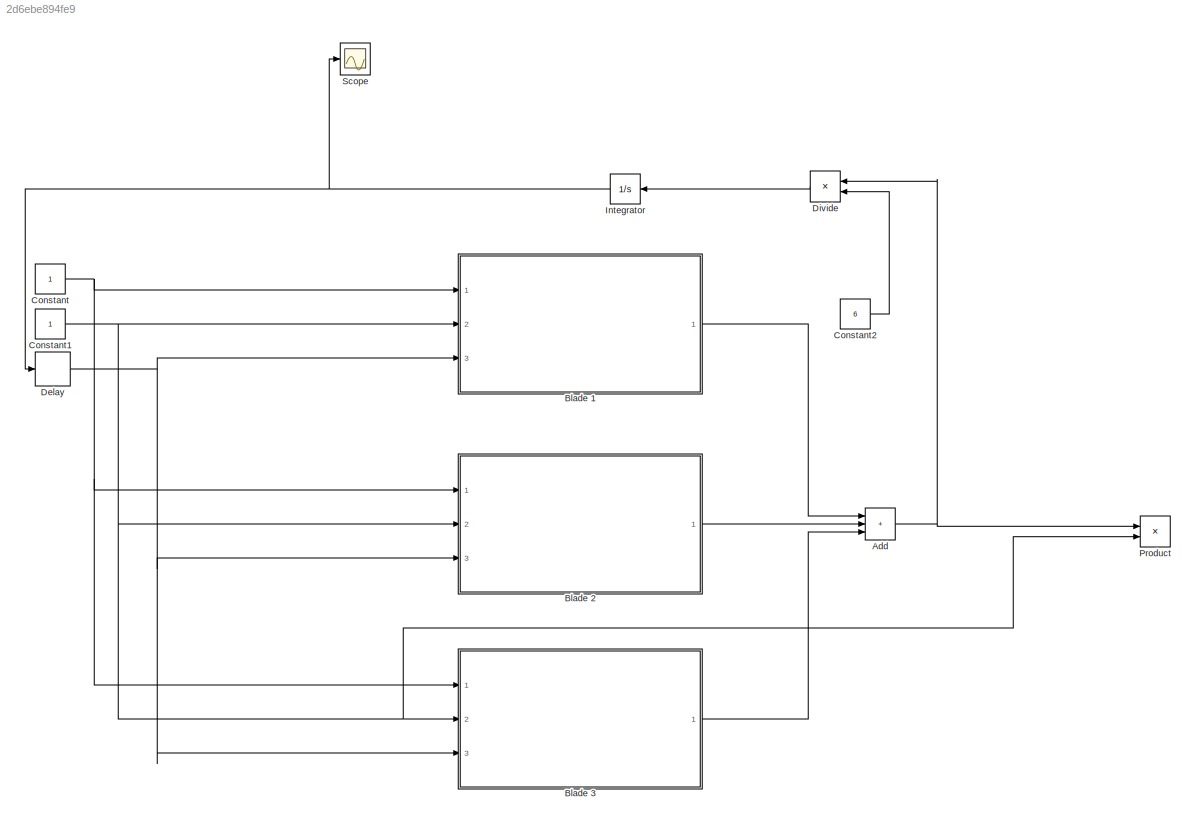
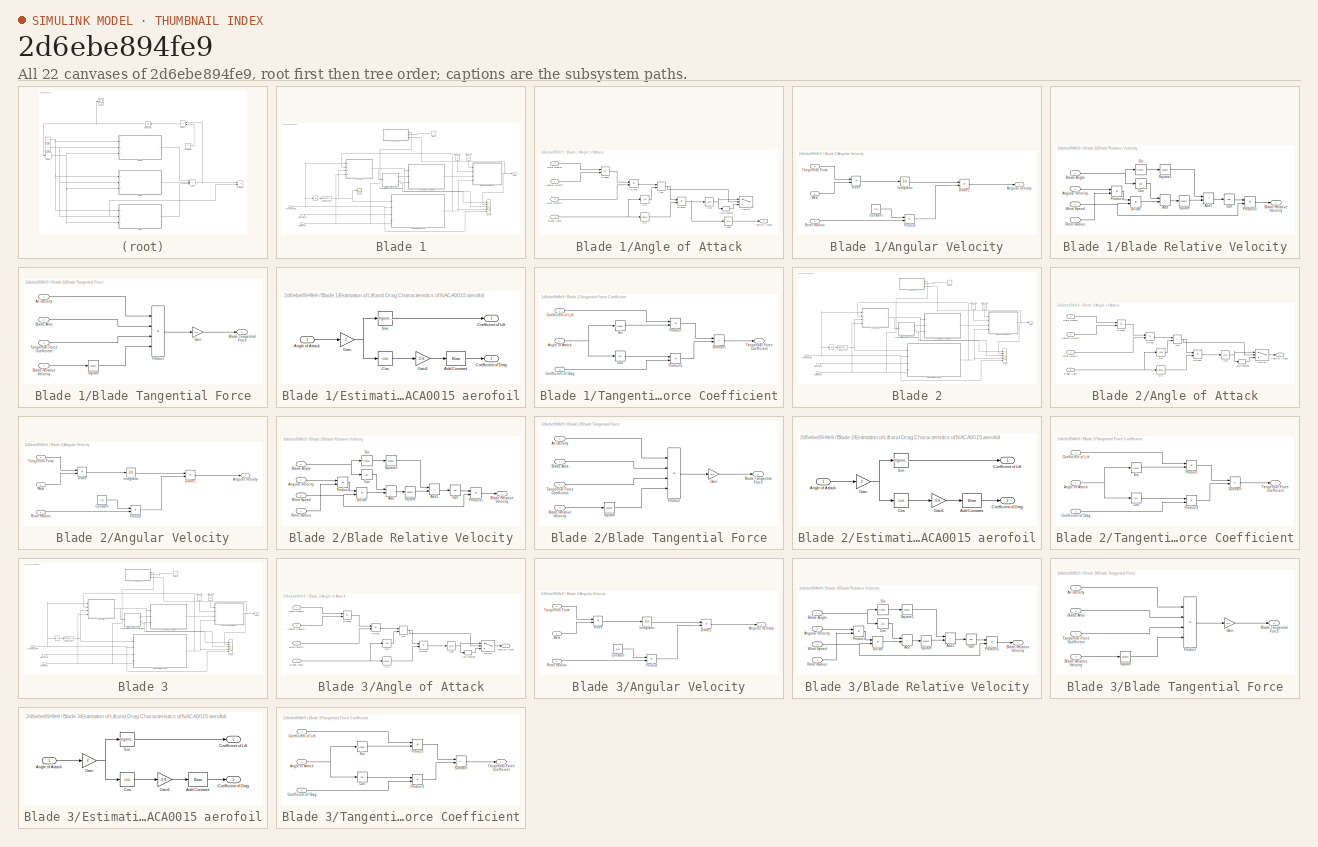
[diagram: thumbnail index - all 22 canvases of the model, root first then tree order]
MODEL slx_2d6ebe894fe9
KIND model
CONFIG AbsTol = auto
CONFIG EnableMultiTasking = off
CONFIG FixedStep = 0.001
CONFIG MaxStep = auto
CONFIG MinStep = auto
CONFIG RelTol = 1e-3
CONFIG SampleTimeConstraint = Unconstrained
CONFIG SolverName = FixedStepAuto
CONFIG StartTime = 0.0
CONFIG StopTime = 1000
BLOCK [Sum] Add
  IconShape = rectangular
  Inputs = +++
  Ports = [3, 1]
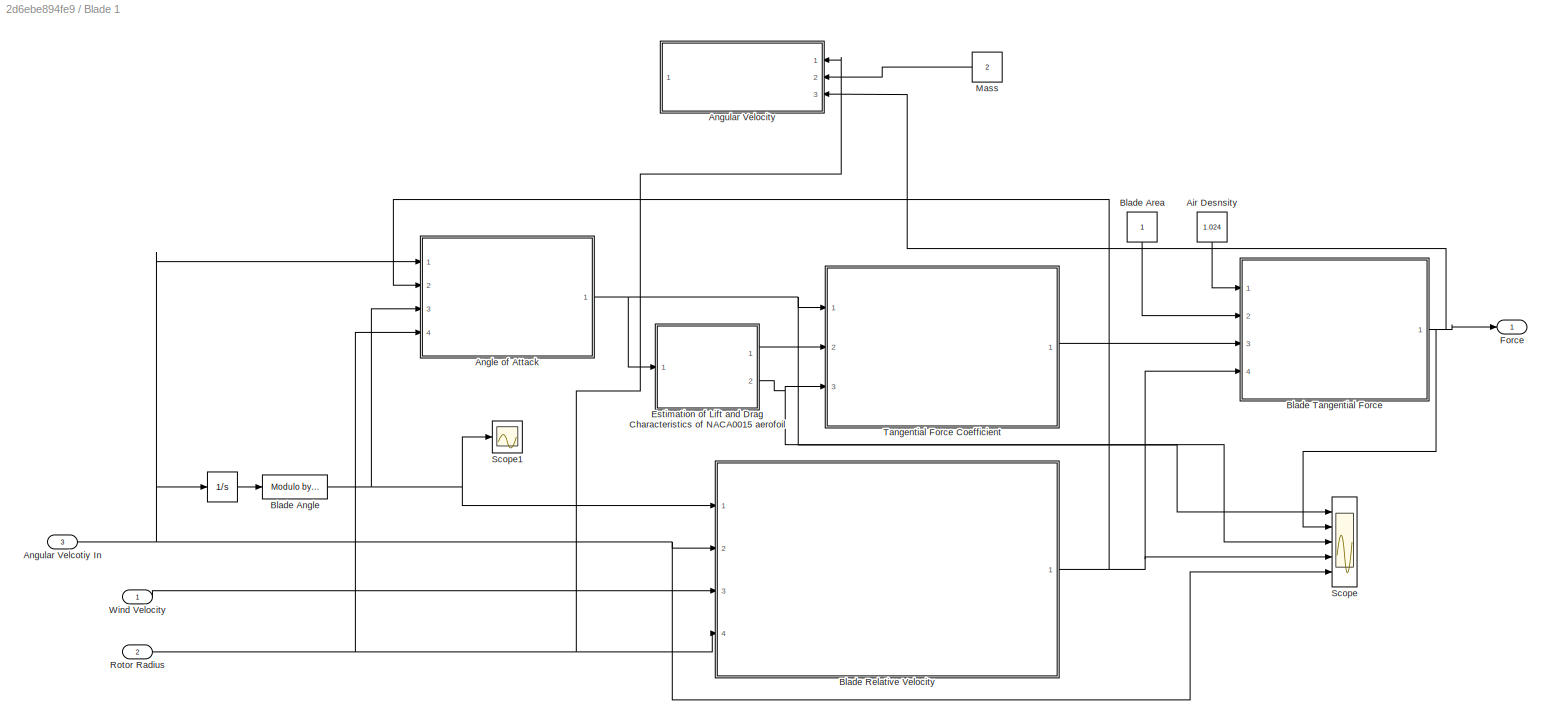
BLOCK [SubSystem] Blade 1
  Ports = [3, 1]
  RequestExecContextInheritance = off
BLOCK [Integrator] Blade 1/ 
  Ports = [1, 1]
BLOCK [Constant] Blade 1/Air Desnsity
  NameLocation = top
  Value = 1.024
BLOCK [SubSystem] Blade 1/Angle of Attack
  NameLocation = top
  Ports = [4, 1]
  RequestExecContextInheritance = off
BLOCK [Sum] Blade 1/Angle of Attack/Add
  IconShape = rectangular
  Ports = [2, 1]
BLOCK [Bias] Blade 1/Angle of Attack/Add Constant
  Bias = pi
  Commented = on
  SaturateOnIntegerOverflow = off
BLOCK [Outport] Blade 1/Angle of Attack/Angle of Attack
BLOCK [Inport] Blade 1/Angle of Attack/Angular Velocity
BLOCK [Trigonometry] Blade 1/Angle of Attack/Atan
  Commented = on
  Operator = atan
  Ports = [1, 1]
BLOCK [Trigonometry] Blade 1/Angle of Attack/Atan1
  Operator = atan
  Ports = [1, 1]
BLOCK [Inport] Blade 1/Angle of Attack/Blade Angle
  Port = 3
BLOCK [Trigonometry] Blade 1/Angle of Attack/Cos
  Operator = cos
  Ports = [1, 1]
BLOCK [Product] Blade 1/Angle of Attack/Divide
  Inputs = */
  Ports = [2, 1]
BLOCK [Product] Blade 1/Angle of Attack/Divide1
  Inputs = /*
  Ports = [2, 1]
BLOCK [Product] Blade 1/Angle of Attack/Product
  Ports = [2, 1]
BLOCK [Inport] Blade 1/Angle of Attack/Rotor Radius
  Port = 4
BLOCK [Trigonometry] Blade 1/Angle of Attack/Sin
  Ports = [1, 1]
BLOCK [Switch] Blade 1/Angle of Attack/Switch
  Commented = on
  Criteria = u2 > Threshold
  InputSameDT = off
  SaturateOnIntegerOverflow = off
BLOCK [Inport] Blade 1/Angle of Attack/Wind Velocity
  Port = 2
BLOCK [Inport] Blade 1/Angular Velcotiy In
  Port = 3
BLOCK [SubSystem] Blade 1/Angular Velocity
  Ports = [3, 1]
  RequestExecContextInheritance = off
BLOCK [Outport] Blade 1/Angular Velocity/Angular Velocity
BLOCK [Constant] Blade 1/Angular Velocity/Constant
  Value = 2*pi
BLOCK [Product] Blade 1/Angular Velocity/Divide
  Inputs = */
  Ports = [2, 1]
BLOCK [Product] Blade 1/Angular Velocity/Divide1
  Inputs = */
  Ports = [2, 1]
BLOCK [Integrator] Blade 1/Angular Velocity/Integrator
  Ports = [1, 1]
BLOCK [Inport] Blade 1/Angular Velocity/Mass
  Port = 2
BLOCK [Product] Blade 1/Angular Velocity/Product
  Ports = [2, 1]
BLOCK [Inport] Blade 1/Angular Velocity/Rotor Radius
BLOCK [Inport] Blade 1/Angular Velocity/Tangential Force
  Port = 3
BLOCK [Reference] Blade 1/Blade Angle  REF=embmathops/Modulo by Constant
  Ports = [1, 1]
  SourceBlock = embmathops/Modulo by Constant
  SourceProductBaseCode = SL
  SourceType = fixed.system.ModByConstant
BLOCK [Constant] Blade 1/Blade Area
  NameLocation = top
BLOCK [SubSystem] Blade 1/Blade Relative Velocity
  Ports = [4, 1]
  RequestExecContextInheritance = off
BLOCK [Sum] Blade 1/Blade Relative Velocity/Add
  IconShape = rectangular
  Ports = [2, 1]
BLOCK [Sum] Blade 1/Blade Relative Velocity/Add1
  IconShape = rectangular
  Ports = [2, 1]
BLOCK [Inport] Blade 1/Blade Relative Velocity/Angular Velocity
  Port = 2
BLOCK [Inport] Blade 1/Blade Relative Velocity/Blade Angle
BLOCK [Outport] Blade 1/Blade Relative Velocity/Blade Relative Velocity
BLOCK [Trigonometry] Blade 1/Blade Relative Velocity/Cos
  Operator = cos
  Ports = [1, 1]
BLOCK [Product] Blade 1/Blade Relative Velocity/Divide
  Inputs = */
  Ports = [2, 1]
BLOCK [Product] Blade 1/Blade Relative Velocity/Product
  Ports = [2, 1]
BLOCK [Product] Blade 1/Blade Relative Velocity/Product1
  Ports = [2, 1]
BLOCK [Inport] Blade 1/Blade Relative Velocity/Rotor Radius
  Port = 4
BLOCK [Trigonometry] Blade 1/Blade Relative Velocity/Sin
  Ports = [1, 1]
BLOCK [Sqrt] Blade 1/Blade Relative Velocity/Sqrt
BLOCK [Math] Blade 1/Blade Relative Velocity/Square
  Operator = square
  Ports = [1, 1]
BLOCK [Math] Blade 1/Blade Relative Velocity/Square1
  Operator = square
  Ports = [1, 1]
BLOCK [Inport] Blade 1/Blade Relative Velocity/Wind Speed
  Port = 3
BLOCK [SubSystem] Blade 1/Blade Tangential Force
  Ports = [4, 1]
  RequestExecContextInheritance = off
BLOCK [Inport] Blade 1/Blade Tangential Force/Air Density
BLOCK [Inport] Blade 1/Blade Tangential Force/Blade Area 
  Port = 2
BLOCK [Inport] Blade 1/Blade Tangential Force/Blade Relative Velocity
  Port = 4
BLOCK [Outport] Blade 1/Blade Tangential Force/Blade Tangential Force
BLOCK [Gain] Blade 1/Blade Tangential Force/Gain
  Gain = 0.5
BLOCK [Product] Blade 1/Blade Tangential Force/Product
  Inputs = 4
  Ports = [4, 1]
BLOCK [Math] Blade 1/Blade Tangential Force/Square
  Operator = square
  Ports = [1, 1]
BLOCK [Inport] Blade 1/Blade Tangential Force/Tangential Force Coefficient
  Port = 3
BLOCK [SubSystem] Blade 1/Estimation of Lift and Drag Characteristics of NACA0015 aerofoil
  Ports = [1, 2]
  RequestExecContextInheritance = off
BLOCK [Bias] Blade 1/Estimation of Lift and Drag Characteristics of NACA0015 aerofoil/Add Constant
  Bias = 1
  SaturateOnIntegerOverflow = off
BLOCK [Inport] Blade 1/Estimation of Lift and Drag Characteristics of NACA0015 aerofoil/Angle of Attack
BLOCK [Outport] Blade 1/Estimation of Lift and Drag Characteristics of NACA0015 aerofoil/Coefficient of Drag
  Port = 2
BLOCK [Outport] Blade 1/Estimation of Lift and Drag Characteristics of NACA0015 aerofoil/Coefficient of Lift
BLOCK [Trigonometry] Blade 1/Estimation of Lift and Drag Characteristics of NACA0015 aerofoil/Cos
  Operator = cos
  Ports = [1, 1]
BLOCK [Gain] Blade 1/Estimation of Lift and Drag Characteristics of NACA0015 aerofoil/Gain
  Gain = 2
BLOCK [Gain] Blade 1/Estimation of Lift and Drag Characteristics of NACA0015 aerofoil/Gain1
  Gain = -0.8
BLOCK [Trigonometry] Blade 1/Estimation of Lift and Drag Characteristics of NACA0015 aerofoil/Sin
  Ports = [1, 1]
BLOCK [Outport] Blade 1/Force
BLOCK [Constant] Blade 1/Mass
  Value = 2
BLOCK [Inport] Blade 1/Rotor Radius
  Port = 2
BLOCK [Scope] Blade 1/Scope
  Floating = off
  NumInputPorts = 5
  Ports = [5]
  ScopeSpecificationString = Simulink.scopes.TimeScopeBlockCfg('CurrentConfiguration', extmgr.ConfigurationSet(extmgr.Configuration('Core','General UI',true),extmgr.Configuration('Core','Source UI',true),extmgr.Configuration('Sources','WiredSimulink',true),extmgr.Configuration('Visuals','Time Domain',true,'SerializedDisplays',{struct('MinYLimReal','-2','MaxYLimReal','2','YLabelReal','','MinYLimMag','0.00000','MaxYLimMag','23....<+1622ch>
BLOCK [Scope] Blade 1/Scope1
  Floating = off
  NumInputPorts = 1
  Ports = [1]
  ScopeSpecificationString = Simulink.scopes.TimeScopeBlockCfg('CurrentConfiguration', extmgr.ConfigurationSet(extmgr.Configuration('Core','General UI',true),extmgr.Configuration('Core','Source UI',true),extmgr.Configuration('Sources','WiredSimulink',true,'DataLoggingVariableName','ScopeData2'),extmgr.Configuration('Visuals','Time Domain',true),extmgr.Configuration('Tools','Plot Navigation',true),extmgr.Configuration('Tools',...<+40ch>
BLOCK [SubSystem] Blade 1/Tangential Force Coefficient
  Ports = [3, 1]
  RequestExecContextInheritance = off
BLOCK [Inport] Blade 1/Tangential Force Coefficient/Angle of Attack
BLOCK [Inport] Blade 1/Tangential Force Coefficient/Coefficient of Drag
  Port = 3
BLOCK [Inport] Blade 1/Tangential Force Coefficient/Coefficient of Lift
  Port = 2
BLOCK [Trigonometry] Blade 1/Tangential Force Coefficient/Cos
  Operator = cos
  Ports = [1, 1]
BLOCK [Product] Blade 1/Tangential Force Coefficient/Product
  Ports = [2, 1]
BLOCK [Product] Blade 1/Tangential Force Coefficient/Product1
  Ports = [2, 1]
BLOCK [Trigonometry] Blade 1/Tangential Force Coefficient/Sin
  Ports = [1, 1]
BLOCK [Sum] Blade 1/Tangential Force Coefficient/Subtract
  IconShape = rectangular
  Inputs = +-
  Ports = [2, 1]
BLOCK [Outport] Blade 1/Tangential Force Coefficient/Tangential Force Coefficient
BLOCK [Inport] Blade 1/Wind Velocity
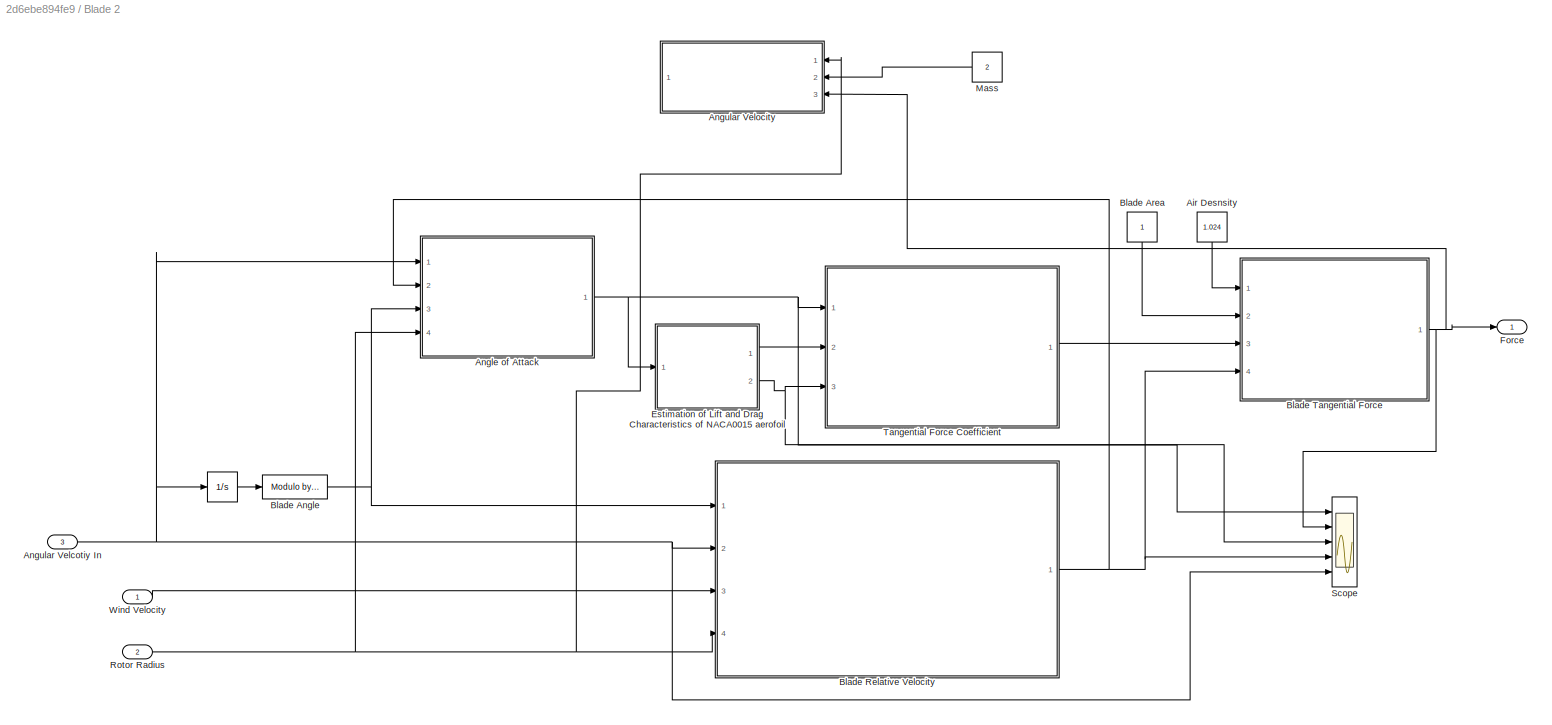
BLOCK [SubSystem] Blade 2
  Ports = [3, 1]
  RequestExecContextInheritance = off
BLOCK [Integrator] Blade 2/ 
  Ports = [1, 1]
BLOCK [Constant] Blade 2/Air Desnsity
  NameLocation = top
  Value = 1.024
BLOCK [SubSystem] Blade 2/Angle of Attack
  NameLocation = top
  Ports = [4, 1]
  RequestExecContextInheritance = off
BLOCK [Sum] Blade 2/Angle of Attack/Add
  IconShape = rectangular
  Ports = [2, 1]
BLOCK [Bias] Blade 2/Angle of Attack/Add Constant
  Bias = pi
  SaturateOnIntegerOverflow = off
BLOCK [Outport] Blade 2/Angle of Attack/Angle of Attack
BLOCK [Inport] Blade 2/Angle of Attack/Angular Velocity
BLOCK [Trigonometry] Blade 2/Angle of Attack/Atan
  Operator = atan
  Ports = [1, 1]
BLOCK [Inport] Blade 2/Angle of Attack/Blade Angle
  Port = 3
BLOCK [Trigonometry] Blade 2/Angle of Attack/Cos
  Operator = cos
  Ports = [1, 1]
BLOCK [Product] Blade 2/Angle of Attack/Divide
  Inputs = */
  Ports = [2, 1]
BLOCK [Product] Blade 2/Angle of Attack/Divide1
  Inputs = /*
  Ports = [2, 1]
BLOCK [Product] Blade 2/Angle of Attack/Product
  Ports = [2, 1]
BLOCK [Inport] Blade 2/Angle of Attack/Rotor Radius
  Port = 4
BLOCK [Trigonometry] Blade 2/Angle of Attack/Sin
  Ports = [1, 1]
BLOCK [Switch] Blade 2/Angle of Attack/Switch
  Criteria = u2 > Threshold
  InputSameDT = off
  SaturateOnIntegerOverflow = off
BLOCK [Inport] Blade 2/Angle of Attack/Wind Velocity
  Port = 2
BLOCK [Inport] Blade 2/Angular Velcotiy In
  Port = 3
BLOCK [SubSystem] Blade 2/Angular Velocity
  Ports = [3, 1]
  RequestExecContextInheritance = off
BLOCK [Outport] Blade 2/Angular Velocity/Angular Velocity
BLOCK [Constant] Blade 2/Angular Velocity/Constant
  Value = 2*pi
BLOCK [Product] Blade 2/Angular Velocity/Divide
  Inputs = */
  Ports = [2, 1]
BLOCK [Product] Blade 2/Angular Velocity/Divide1
  Inputs = */
  Ports = [2, 1]
BLOCK [Integrator] Blade 2/Angular Velocity/Integrator
  Ports = [1, 1]
BLOCK [Inport] Blade 2/Angular Velocity/Mass
  Port = 2
BLOCK [Product] Blade 2/Angular Velocity/Product
  Ports = [2, 1]
BLOCK [Inport] Blade 2/Angular Velocity/Rotor Radius
BLOCK [Inport] Blade 2/Angular Velocity/Tangential Force
  Port = 3
BLOCK [Reference] Blade 2/Blade Angle  REF=embmathops/Modulo by Constant
  Ports = [1, 1]
  SourceBlock = embmathops/Modulo by Constant
  SourceProductBaseCode = SL
  SourceType = fixed.system.ModByConstant
BLOCK [Constant] Blade 2/Blade Area
  NameLocation = top
BLOCK [SubSystem] Blade 2/Blade Relative Velocity
  Ports = [4, 1]
  RequestExecContextInheritance = off
BLOCK [Sum] Blade 2/Blade Relative Velocity/Add
  IconShape = rectangular
  Ports = [2, 1]
BLOCK [Sum] Blade 2/Blade Relative Velocity/Add1
  IconShape = rectangular
  Ports = [2, 1]
BLOCK [Inport] Blade 2/Blade Relative Velocity/Angular Velocity
  Port = 2
BLOCK [Inport] Blade 2/Blade Relative Velocity/Blade Angle
BLOCK [Outport] Blade 2/Blade Relative Velocity/Blade Relative Velocity
BLOCK [Trigonometry] Blade 2/Blade Relative Velocity/Cos
  Operator = cos
  Ports = [1, 1]
BLOCK [Product] Blade 2/Blade Relative Velocity/Divide
  Inputs = */
  Ports = [2, 1]
BLOCK [Product] Blade 2/Blade Relative Velocity/Product
  Ports = [2, 1]
BLOCK [Product] Blade 2/Blade Relative Velocity/Product1
  Ports = [2, 1]
BLOCK [Inport] Blade 2/Blade Relative Velocity/Rotor Radius
  Port = 4
BLOCK [Trigonometry] Blade 2/Blade Relative Velocity/Sin
  Ports = [1, 1]
BLOCK [Sqrt] Blade 2/Blade Relative Velocity/Sqrt
BLOCK [Math] Blade 2/Blade Relative Velocity/Square
  Operator = square
  Ports = [1, 1]
BLOCK [Math] Blade 2/Blade Relative Velocity/Square1
  Operator = square
  Ports = [1, 1]
BLOCK [Inport] Blade 2/Blade Relative Velocity/Wind Speed
  Port = 3
BLOCK [SubSystem] Blade 2/Blade Tangential Force
  Ports = [4, 1]
  RequestExecContextInheritance = off
BLOCK [Inport] Blade 2/Blade Tangential Force/Air Density
BLOCK [Inport] Blade 2/Blade Tangential Force/Blade Area 
  Port = 2
BLOCK [Inport] Blade 2/Blade Tangential Force/Blade Relative Velocity
  Port = 4
BLOCK [Outport] Blade 2/Blade Tangential Force/Blade Tangential Force
BLOCK [Gain] Blade 2/Blade Tangential Force/Gain
  Gain = 0.5
BLOCK [Product] Blade 2/Blade Tangential Force/Product
  Inputs = 4
  Ports = [4, 1]
BLOCK [Math] Blade 2/Blade Tangential Force/Square
  Operator = square
  Ports = [1, 1]
BLOCK [Inport] Blade 2/Blade Tangential Force/Tangential Force Coefficient
  Port = 3
BLOCK [SubSystem] Blade 2/Estimation of Lift and Drag Characteristics of NACA0015 aerofoil
  Ports = [1, 2]
  RequestExecContextInheritance = off
BLOCK [Bias] Blade 2/Estimation of Lift and Drag Characteristics of NACA0015 aerofoil/Add Constant
  Bias = 1
  SaturateOnIntegerOverflow = off
BLOCK [Inport] Blade 2/Estimation of Lift and Drag Characteristics of NACA0015 aerofoil/Angle of Attack
BLOCK [Outport] Blade 2/Estimation of Lift and Drag Characteristics of NACA0015 aerofoil/Coefficient of Drag
  Port = 2
BLOCK [Outport] Blade 2/Estimation of Lift and Drag Characteristics of NACA0015 aerofoil/Coefficient of Lift
BLOCK [Trigonometry] Blade 2/Estimation of Lift and Drag Characteristics of NACA0015 aerofoil/Cos
  Operator = cos
  Ports = [1, 1]
BLOCK [Gain] Blade 2/Estimation of Lift and Drag Characteristics of NACA0015 aerofoil/Gain
  Gain = 2
BLOCK [Gain] Blade 2/Estimation of Lift and Drag Characteristics of NACA0015 aerofoil/Gain1
  Gain = -0.8
BLOCK [Trigonometry] Blade 2/Estimation of Lift and Drag Characteristics of NACA0015 aerofoil/Sin
  Ports = [1, 1]
BLOCK [Outport] Blade 2/Force
BLOCK [Constant] Blade 2/Mass
  Value = 2
BLOCK [Inport] Blade 2/Rotor Radius
  Port = 2
BLOCK [Scope] Blade 2/Scope
  Floating = off
  NumInputPorts = 5
  Ports = [5]
  ScopeSpecificationString = Simulink.scopes.TimeScopeBlockCfg('CurrentConfiguration', extmgr.ConfigurationSet(extmgr.Configuration('Core','General UI',true),extmgr.Configuration('Core','Source UI',true),extmgr.Configuration('Sources','WiredSimulink',true),extmgr.Configuration('Visuals','Time Domain',true,'SerializedDisplays',{struct('MinYLimReal','-2','MaxYLimReal','2','YLabelReal','','MinYLimMag','0.00000','MaxYLimMag','23....<+1625ch>
BLOCK [SubSystem] Blade 2/Tangential Force Coefficient
  Ports = [3, 1]
  RequestExecContextInheritance = off
BLOCK [Inport] Blade 2/Tangential Force Coefficient/Angle of Attack
BLOCK [Inport] Blade 2/Tangential Force Coefficient/Coefficient of Drag
  Port = 3
BLOCK [Inport] Blade 2/Tangential Force Coefficient/Coefficient of Lift
  Port = 2
BLOCK [Trigonometry] Blade 2/Tangential Force Coefficient/Cos
  Operator = cos
  Ports = [1, 1]
BLOCK [Product] Blade 2/Tangential Force Coefficient/Product
  Ports = [2, 1]
BLOCK [Product] Blade 2/Tangential Force Coefficient/Product1
  Ports = [2, 1]
BLOCK [Trigonometry] Blade 2/Tangential Force Coefficient/Sin
  Ports = [1, 1]
BLOCK [Sum] Blade 2/Tangential Force Coefficient/Subtract
  IconShape = rectangular
  Inputs = +-
  Ports = [2, 1]
BLOCK [Outport] Blade 2/Tangential Force Coefficient/Tangential Force Coefficient
BLOCK [Inport] Blade 2/Wind Velocity
BLOCK [SubSystem] Blade 3
  Ports = [3, 1]
  RequestExecContextInheritance = off
BLOCK [Integrator] Blade 3/ 
  Ports = [1, 1]
BLOCK [Constant] Blade 3/Air Desnsity
  NameLocation = top
  Value = 1.024
BLOCK [SubSystem] Blade 3/Angle of Attack
  NameLocation = top
  Ports = [4, 1]
  RequestExecContextInheritance = off
BLOCK [Sum] Blade 3/Angle of Attack/Add
  IconShape = rectangular
  Ports = [2, 1]
BLOCK [Bias] Blade 3/Angle of Attack/Add Constant
  Bias = pi
  SaturateOnIntegerOverflow = off
BLOCK [Outport] Blade 3/Angle of Attack/Angle of Attack
BLOCK [Inport] Blade 3/Angle of Attack/Angular Velocity
BLOCK [Trigonometry] Blade 3/Angle of Attack/Atan
  Operator = atan
  Ports = [1, 1]
BLOCK [Inport] Blade 3/Angle of Attack/Blade Angle
  Port = 3
BLOCK [Trigonometry] Blade 3/Angle of Attack/Cos
  Operator = cos
  Ports = [1, 1]
BLOCK [Product] Blade 3/Angle of Attack/Divide
  Inputs = */
  Ports = [2, 1]
BLOCK [Product] Blade 3/Angle of Attack/Divide1
  Inputs = /*
  Ports = [2, 1]
BLOCK [Product] Blade 3/Angle of Attack/Product
  Ports = [2, 1]
BLOCK [Inport] Blade 3/Angle of Attack/Rotor Radius
  Port = 4
BLOCK [Trigonometry] Blade 3/Angle of Attack/Sin
  Ports = [1, 1]
BLOCK [Switch] Blade 3/Angle of Attack/Switch
  Criteria = u2 > Threshold
  InputSameDT = off
  SaturateOnIntegerOverflow = off
BLOCK [Inport] Blade 3/Angle of Attack/Wind Velocity
  Port = 2
BLOCK [Inport] Blade 3/Angular Velcotiy In
  Port = 3
BLOCK [SubSystem] Blade 3/Angular Velocity
  Ports = [3, 1]
  RequestExecContextInheritance = off
BLOCK [Outport] Blade 3/Angular Velocity/Angular Velocity
BLOCK [Constant] Blade 3/Angular Velocity/Constant
  Value = 2*pi
BLOCK [Product] Blade 3/Angular Velocity/Divide
  Inputs = */
  Ports = [2, 1]
BLOCK [Product] Blade 3/Angular Velocity/Divide1
  Inputs = */
  Ports = [2, 1]
BLOCK [Integrator] Blade 3/Angular Velocity/Integrator
  Ports = [1, 1]
BLOCK [Inport] Blade 3/Angular Velocity/Mass
  Port = 2
BLOCK [Product] Blade 3/Angular Velocity/Product
  Ports = [2, 1]
BLOCK [Inport] Blade 3/Angular Velocity/Rotor Radius
BLOCK [Inport] Blade 3/Angular Velocity/Tangential Force
  Port = 3
BLOCK [Reference] Blade 3/Blade Angle  REF=embmathops/Modulo by Constant
  Ports = [1, 1]
  SourceBlock = embmathops/Modulo by Constant
  SourceProductBaseCode = SL
  SourceType = fixed.system.ModByConstant
BLOCK [Constant] Blade 3/Blade Area
  NameLocation = top
BLOCK [SubSystem] Blade 3/Blade Relative Velocity
  Ports = [4, 1]
  RequestExecContextInheritance = off
BLOCK [Sum] Blade 3/Blade Relative Velocity/Add
  IconShape = rectangular
  Ports = [2, 1]
BLOCK [Sum] Blade 3/Blade Relative Velocity/Add1
  IconShape = rectangular
  Ports = [2, 1]
BLOCK [Inport] Blade 3/Blade Relative Velocity/Angular Velocity
  Port = 2
BLOCK [Inport] Blade 3/Blade Relative Velocity/Blade Angle
BLOCK [Outport] Blade 3/Blade Relative Velocity/Blade Relative Velocity
BLOCK [Trigonometry] Blade 3/Blade Relative Velocity/Cos
  Operator = cos
  Ports = [1, 1]
BLOCK [Product] Blade 3/Blade Relative Velocity/Divide
  Inputs = */
  Ports = [2, 1]
BLOCK [Product] Blade 3/Blade Relative Velocity/Product
  Ports = [2, 1]
BLOCK [Product] Blade 3/Blade Relative Velocity/Product1
  Ports = [2, 1]
BLOCK [Inport] Blade 3/Blade Relative Velocity/Rotor Radius
  Port = 4
BLOCK [Trigonometry] Blade 3/Blade Relative Velocity/Sin
  Ports = [1, 1]
BLOCK [Sqrt] Blade 3/Blade Relative Velocity/Sqrt
BLOCK [Math] Blade 3/Blade Relative Velocity/Square
  Operator = square
  Ports = [1, 1]
BLOCK [Math] Blade 3/Blade Relative Velocity/Square1
  Operator = square
  Ports = [1, 1]
BLOCK [Inport] Blade 3/Blade Relative Velocity/Wind Speed
  Port = 3
BLOCK [SubSystem] Blade 3/Blade Tangential Force
  Ports = [4, 1]
  RequestExecContextInheritance = off
BLOCK [Inport] Blade 3/Blade Tangential Force/Air Density
BLOCK [Inport] Blade 3/Blade Tangential Force/Blade Area 
  Port = 2
BLOCK [Inport] Blade 3/Blade Tangential Force/Blade Relative Velocity
  Port = 4
BLOCK [Outport] Blade 3/Blade Tangential Force/Blade Tangential Force
BLOCK [Gain] Blade 3/Blade Tangential Force/Gain
  Gain = 0.5
BLOCK [Product] Blade 3/Blade Tangential Force/Product
  Inputs = 4
  Ports = [4, 1]
BLOCK [Math] Blade 3/Blade Tangential Force/Square
  Operator = square
  Ports = [1, 1]
BLOCK [Inport] Blade 3/Blade Tangential Force/Tangential Force Coefficient
  Port = 3
BLOCK [SubSystem] Blade 3/Estimation of Lift and Drag Characteristics of NACA0015 aerofoil
  Ports = [1, 2]
  RequestExecContextInheritance = off
BLOCK [Bias] Blade 3/Estimation of Lift and Drag Characteristics of NACA0015 aerofoil/Add Constant
  Bias = 1
  SaturateOnIntegerOverflow = off
BLOCK [Inport] Blade 3/Estimation of Lift and Drag Characteristics of NACA0015 aerofoil/Angle of Attack
BLOCK [Outport] Blade 3/Estimation of Lift and Drag Characteristics of NACA0015 aerofoil/Coefficient of Drag
  Port = 2
BLOCK [Outport] Blade 3/Estimation of Lift and Drag Characteristics of NACA0015 aerofoil/Coefficient of Lift
BLOCK [Trigonometry] Blade 3/Estimation of Lift and Drag Characteristics of NACA0015 aerofoil/Cos
  Operator = cos
  Ports = [1, 1]
BLOCK [Gain] Blade 3/Estimation of Lift and Drag Characteristics of NACA0015 aerofoil/Gain
  Gain = 2
BLOCK [Gain] Blade 3/Estimation of Lift and Drag Characteristics of NACA0015 aerofoil/Gain1
  Gain = -0.8
BLOCK [Trigonometry] Blade 3/Estimation of Lift and Drag Characteristics of NACA0015 aerofoil/Sin
  Ports = [1, 1]
BLOCK [Outport] Blade 3/Force
BLOCK [Constant] Blade 3/Mass
  Value = 2
BLOCK [Inport] Blade 3/Rotor Radius
  Port = 2
BLOCK [Scope] Blade 3/Scope
  Floating = off
  NumInputPorts = 5
  Ports = [5]
  ScopeSpecificationString = Simulink.scopes.TimeScopeBlockCfg('CurrentConfiguration', extmgr.ConfigurationSet(extmgr.Configuration('Core','General UI',true),extmgr.Configuration('Core','Source UI',true),extmgr.Configuration('Sources','WiredSimulink',true),extmgr.Configuration('Visuals','Time Domain',true,'SerializedDisplays',{struct('MinYLimReal','-2','MaxYLimReal','2','YLabelReal','','MinYLimMag','0.00000','MaxYLimMag','23....<+1625ch>
BLOCK [SubSystem] Blade 3/Tangential Force Coefficient
  Ports = [3, 1]
  RequestExecContextInheritance = off
BLOCK [Inport] Blade 3/Tangential Force Coefficient/Angle of Attack
BLOCK [Inport] Blade 3/Tangential Force Coefficient/Coefficient of Drag
  Port = 3
BLOCK [Inport] Blade 3/Tangential Force Coefficient/Coefficient of Lift
  Port = 2
BLOCK [Trigonometry] Blade 3/Tangential Force Coefficient/Cos
  Operator = cos
  Ports = [1, 1]
BLOCK [Product] Blade 3/Tangential Force Coefficient/Product
  Ports = [2, 1]
BLOCK [Product] Blade 3/Tangential Force Coefficient/Product1
  Ports = [2, 1]
BLOCK [Trigonometry] Blade 3/Tangential Force Coefficient/Sin
  Ports = [1, 1]
BLOCK [Sum] Blade 3/Tangential Force Coefficient/Subtract
  IconShape = rectangular
  Inputs = +-
  Ports = [2, 1]
BLOCK [Outport] Blade 3/Tangential Force Coefficient/Tangential Force Coefficient
BLOCK [Inport] Blade 3/Wind Velocity
BLOCK [Constant] Constant
BLOCK [Constant] Constant1
BLOCK [Constant] Constant2
  Value = 6
BLOCK [Delay] Delay
  DelayLength = 1
  InitialCondition = -6
  InputPortMap = u0
  Ports = [1, 1]
BLOCK [Product] Divide
  Inputs = */
  Ports = [2, 1]
BLOCK [Integrator] Integrator
  InitialCondition = -6
  Ports = [1, 1]
BLOCK [Product] Product
  Ports = [2, 1]
BLOCK [Scope] Scope
  Floating = off
  NumInputPorts = 1
  Ports = [1]
  ScopeSpecificationString = Simulink.scopes.TimeScopeBlockCfg('CurrentConfiguration', extmgr.ConfigurationSet(extmgr.Configuration('Core','General UI',true),extmgr.Configuration('Core','Source UI',true),extmgr.Configuration('Sources','WiredSimulink',true,'DataLoggingVariableName','ScopeData1'),extmgr.Configuration('Visuals','Time Domain',true,'SerializedDisplays',{struct('MinYLimReal','-0.96604','MaxYLimReal','6.774','YLabel...<+1388ch>
NET Add:1 -> Divide:1, Product:1
LINE Blade 1/ :1 -> Blade 1/Blade Angle:1
LINE Blade 1/Air Desnsity:1 -> Blade 1/Blade Tangential Force:1
LINE Blade 1/Angle of Attack/Add Constant:1 -> Blade 1/Angle of Attack/Switch:3
NET Blade 1/Angle of Attack/Add:1 -> Blade 1/Angle of Attack/Divide1:1, Blade 1/Angle of Attack/Switch:2
LINE Blade 1/Angle of Attack/Angular Velocity:1 -> Blade 1/Angle of Attack/Product:2
LINE Blade 1/Angle of Attack/Atan1:1 -> Blade 1/Angle of Attack/Angle of Attack:1
NET Blade 1/Angle of Attack/Atan:1 -> Blade 1/Angle of Attack/Add Constant:1, Blade 1/Angle of Attack/Switch:1
NET Blade 1/Angle of Attack/Blade Angle:1 -> Blade 1/Angle of Attack/Cos:1, Blade 1/Angle of Attack/Sin:1
LINE Blade 1/Angle of Attack/Cos:1 -> Blade 1/Angle of Attack/Add:2
NET Blade 1/Angle of Attack/Divide1:1 -> Blade 1/Angle of Attack/Atan1:1, Blade 1/Angle of Attack/Atan:1
LINE Blade 1/Angle of Attack/Divide:1 -> Blade 1/Angle of Attack/Add:1
LINE Blade 1/Angle of Attack/Product:1 -> Blade 1/Angle of Attack/Divide:1
LINE Blade 1/Angle of Attack/Rotor Radius:1 -> Blade 1/Angle of Attack/Product:1
LINE Blade 1/Angle of Attack/Sin:1 -> Blade 1/Angle of Attack/Divide1:2
LINE Blade 1/Angle of Attack/Wind Velocity:1 -> Blade 1/Angle of Attack/Divide:2
NET Blade 1/Angle of Attack:1 -> Blade 1/Estimation of Lift and Drag Characteristics of NACA0015 aerofoil:1, Blade 1/Scope:1, Blade 1/Tangential Force Coefficient:1
NET Blade 1/Angular Velcotiy In:1 -> Blade 1/ :1, Blade 1/Angle of Attack:1, Blade 1/Blade Relative Velocity:2, Blade 1/Scope:5
LINE Blade 1/Angular Velocity/Constant:1 -> Blade 1/Angular Velocity/Product:1
LINE Blade 1/Angular Velocity/Divide1:1 -> Blade 1/Angular Velocity/Angular Velocity:1
LINE Blade 1/Angular Velocity/Divide:1 -> Blade 1/Angular Velocity/Integrator:1
LINE Blade 1/Angular Velocity/Integrator:1 -> Blade 1/Angular Velocity/Divide1:1
LINE Blade 1/Angular Velocity/Mass:1 -> Blade 1/Angular Velocity/Divide:2
LINE Blade 1/Angular Velocity/Product:1 -> Blade 1/Angular Velocity/Divide1:2
LINE Blade 1/Angular Velocity/Rotor Radius:1 -> Blade 1/Angular Velocity/Product:2
LINE Blade 1/Angular Velocity/Tangential Force:1 -> Blade 1/Angular Velocity/Divide:1
NET Blade 1/Blade Angle:1 -> Blade 1/Angle of Attack:3, Blade 1/Blade Relative Velocity:1, Blade 1/Scope1:1
LINE Blade 1/Blade Area:1 -> Blade 1/Blade Tangential Force:2
LINE Blade 1/Blade Relative Velocity/Add1:1 -> Blade 1/Blade Relative Velocity/Sqrt:1
LINE Blade 1/Blade Relative Velocity/Add:1 -> Blade 1/Blade Relative Velocity/Square:1
LINE Blade 1/Blade Relative Velocity/Angular Velocity:1 -> Blade 1/Blade Relative Velocity/Product:1
NET Blade 1/Blade Relative Velocity/Blade Angle:1 -> Blade 1/Blade Relative Velocity/Cos:1, Blade 1/Blade Relative Velocity/Sin:1
LINE Blade 1/Blade Relative Velocity/Cos:1 -> Blade 1/Blade Relative Velocity/Add:1
LINE Blade 1/Blade Relative Velocity/Divide:1 -> Blade 1/Blade Relative Velocity/Add:2
LINE Blade 1/Blade Relative Velocity/Product1:1 -> Blade 1/Blade Relative Velocity/Blade Relative Velocity:1
LINE Blade 1/Blade Relative Velocity/Product:1 -> Blade 1/Blade Relative Velocity/Divide:1
LINE Blade 1/Blade Relative Velocity/Rotor Radius:1 -> Blade 1/Blade Relative Velocity/Product:2
LINE Blade 1/Blade Relative Velocity/Sin:1 -> Blade 1/Blade Relative Velocity/Square1:1
LINE Blade 1/Blade Relative Velocity/Sqrt:1 -> Blade 1/Blade Relative Velocity/Product1:1
LINE Blade 1/Blade Relative Velocity/Square1:1 -> Blade 1/Blade Relative Velocity/Add1:1
LINE Blade 1/Blade Relative Velocity/Square:1 -> Blade 1/Blade Relative Velocity/Add1:2
NET Blade 1/Blade Relative Velocity/Wind Speed:1 -> Blade 1/Blade Relative Velocity/Divide:2, Blade 1/Blade Relative Velocity/Product1:2
NET Blade 1/Blade Relative Velocity:1 -> Blade 1/Angle of Attack:2, Blade 1/Blade Tangential Force:4, Blade 1/Scope:4
LINE Blade 1/Blade Tangential Force/Air Density:1 -> Blade 1/Blade Tangential Force/Product:1
LINE Blade 1/Blade Tangential Force/Blade Area :1 -> Blade 1/Blade Tangential Force/Product:2
LINE Blade 1/Blade Tangential Force/Blade Relative Velocity:1 -> Blade 1/Blade Tangential Force/Square:1
LINE Blade 1/Blade Tangential Force/Gain:1 -> Blade 1/Blade Tangential Force/Blade Tangential Force:1
LINE Blade 1/Blade Tangential Force/Product:1 -> Blade 1/Blade Tangential Force/Gain:1
LINE Blade 1/Blade Tangential Force/Square:1 -> Blade 1/Blade Tangential Force/Product:4
LINE Blade 1/Blade Tangential Force/Tangential Force Coefficient:1 -> Blade 1/Blade Tangential Force/Product:3
NET Blade 1/Blade Tangential Force:1 -> Blade 1/Angular Velocity:3, Blade 1/Force:1, Blade 1/Scope:2
LINE Blade 1/Estimation of Lift and Drag Characteristics of NACA0015 aerofoil/Add Constant:1 -> Blade 1/Estimation of Lift and Drag Characteristics of NACA0015 aerofoil/Coefficient of Drag:1
LINE Blade 1/Estimation of Lift and Drag Characteristics of NACA0015 aerofoil/Angle of Attack:1 -> Blade 1/Estimation of Lift and Drag Characteristics of NACA0015 aerofoil/Gain:1
LINE Blade 1/Estimation of Lift and Drag Characteristics of NACA0015 aerofoil/Cos:1 -> Blade 1/Estimation of Lift and Drag Characteristics of NACA0015 aerofoil/Gain1:1
LINE Blade 1/Estimation of Lift and Drag Characteristics of NACA0015 aerofoil/Gain1:1 -> Blade 1/Estimation of Lift and Drag Characteristics of NACA0015 aerofoil/Add Constant:1
NET Blade 1/Estimation of Lift and Drag Characteristics of NACA0015 aerofoil/Gain:1 -> Blade 1/Estimation of Lift and Drag Characteristics of NACA0015 aerofoil/Cos:1, Blade 1/Estimation of Lift and Drag Characteristics of NACA0015 aerofoil/Sin:1
LINE Blade 1/Estimation of Lift and Drag Characteristics of NACA0015 aerofoil/Sin:1 -> Blade 1/Estimation of Lift and Drag Characteristics of NACA0015 aerofoil/Coefficient of Lift:1
LINE Blade 1/Estimation of Lift and Drag Characteristics of NACA0015 aerofoil:1 -> Blade 1/Tangential Force Coefficient:2
NET Blade 1/Estimation of Lift and Drag Characteristics of NACA0015 aerofoil:2 -> Blade 1/Scope:3, Blade 1/Tangential Force Coefficient:3
LINE Blade 1/Mass:1 -> Blade 1/Angular Velocity:2
NET Blade 1/Rotor Radius:1 -> Blade 1/Angle of Attack:4, Blade 1/Angular Velocity:1, Blade 1/Blade Relative Velocity:4
NET Blade 1/Tangential Force Coefficient/Angle of Attack:1 -> Blade 1/Tangential Force Coefficient/Cos:1, Blade 1/Tangential Force Coefficient/Sin:1
LINE Blade 1/Tangential Force Coefficient/Coefficient of Drag:1 -> Blade 1/Tangential Force Coefficient/Product1:2
LINE Blade 1/Tangential Force Coefficient/Coefficient of Lift:1 -> Blade 1/Tangential Force Coefficient/Product:1
LINE Blade 1/Tangential Force Coefficient/Cos:1 -> Blade 1/Tangential Force Coefficient/Product1:1
LINE Blade 1/Tangential Force Coefficient/Product1:1 -> Blade 1/Tangential Force Coefficient/Subtract:2
LINE Blade 1/Tangential Force Coefficient/Product:1 -> Blade 1/Tangential Force Coefficient/Subtract:1
LINE Blade 1/Tangential Force Coefficient/Sin:1 -> Blade 1/Tangential Force Coefficient/Product:2
LINE Blade 1/Tangential Force Coefficient/Subtract:1 -> Blade 1/Tangential Force Coefficient/Tangential Force Coefficient:1
LINE Blade 1/Tangential Force Coefficient:1 -> Blade 1/Blade Tangential Force:3
LINE Blade 1/Wind Velocity:1 -> Blade 1/Blade Relative Velocity:3
LINE Blade 1:1 -> Add:1
LINE Blade 2/ :1 -> Blade 2/Blade Angle:1
LINE Blade 2/Air Desnsity:1 -> Blade 2/Blade Tangential Force:1
LINE Blade 2/Angle of Attack/Add Constant:1 -> Blade 2/Angle of Attack/Switch:3
NET Blade 2/Angle of Attack/Add:1 -> Blade 2/Angle of Attack/Divide1:1, Blade 2/Angle of Attack/Switch:2
LINE Blade 2/Angle of Attack/Angular Velocity:1 -> Blade 2/Angle of Attack/Product:2
NET Blade 2/Angle of Attack/Atan:1 -> Blade 2/Angle of Attack/Add Constant:1, Blade 2/Angle of Attack/Switch:1
NET Blade 2/Angle of Attack/Blade Angle:1 -> Blade 2/Angle of Attack/Cos:1, Blade 2/Angle of Attack/Sin:1
LINE Blade 2/Angle of Attack/Cos:1 -> Blade 2/Angle of Attack/Add:2
LINE Blade 2/Angle of Attack/Divide1:1 -> Blade 2/Angle of Attack/Atan:1
LINE Blade 2/Angle of Attack/Divide:1 -> Blade 2/Angle of Attack/Add:1
LINE Blade 2/Angle of Attack/Product:1 -> Blade 2/Angle of Attack/Divide:1
LINE Blade 2/Angle of Attack/Rotor Radius:1 -> Blade 2/Angle of Attack/Product:1
LINE Blade 2/Angle of Attack/Sin:1 -> Blade 2/Angle of Attack/Divide1:2
LINE Blade 2/Angle of Attack/Switch:1 -> Blade 2/Angle of Attack/Angle of Attack:1
LINE Blade 2/Angle of Attack/Wind Velocity:1 -> Blade 2/Angle of Attack/Divide:2
NET Blade 2/Angle of Attack:1 -> Blade 2/Estimation of Lift and Drag Characteristics of NACA0015 aerofoil:1, Blade 2/Scope:1, Blade 2/Tangential Force Coefficient:1
NET Blade 2/Angular Velcotiy In:1 -> Blade 2/ :1, Blade 2/Angle of Attack:1, Blade 2/Blade Relative Velocity:2, Blade 2/Scope:5
LINE Blade 2/Angular Velocity/Constant:1 -> Blade 2/Angular Velocity/Product:1
LINE Blade 2/Angular Velocity/Divide1:1 -> Blade 2/Angular Velocity/Angular Velocity:1
LINE Blade 2/Angular Velocity/Divide:1 -> Blade 2/Angular Velocity/Integrator:1
LINE Blade 2/Angular Velocity/Integrator:1 -> Blade 2/Angular Velocity/Divide1:1
LINE Blade 2/Angular Velocity/Mass:1 -> Blade 2/Angular Velocity/Divide:2
LINE Blade 2/Angular Velocity/Product:1 -> Blade 2/Angular Velocity/Divide1:2
LINE Blade 2/Angular Velocity/Rotor Radius:1 -> Blade 2/Angular Velocity/Product:2
LINE Blade 2/Angular Velocity/Tangential Force:1 -> Blade 2/Angular Velocity/Divide:1
NET Blade 2/Blade Angle:1 -> Blade 2/Angle of Attack:3, Blade 2/Blade Relative Velocity:1
LINE Blade 2/Blade Area:1 -> Blade 2/Blade Tangential Force:2
LINE Blade 2/Blade Relative Velocity/Add1:1 -> Blade 2/Blade Relative Velocity/Sqrt:1
LINE Blade 2/Blade Relative Velocity/Add:1 -> Blade 2/Blade Relative Velocity/Square:1
LINE Blade 2/Blade Relative Velocity/Angular Velocity:1 -> Blade 2/Blade Relative Velocity/Product:1
NET Blade 2/Blade Relative Velocity/Blade Angle:1 -> Blade 2/Blade Relative Velocity/Cos:1, Blade 2/Blade Relative Velocity/Sin:1
LINE Blade 2/Blade Relative Velocity/Cos:1 -> Blade 2/Blade Relative Velocity/Add:1
LINE Blade 2/Blade Relative Velocity/Divide:1 -> Blade 2/Blade Relative Velocity/Add:2
LINE Blade 2/Blade Relative Velocity/Product1:1 -> Blade 2/Blade Relative Velocity/Blade Relative Velocity:1
LINE Blade 2/Blade Relative Velocity/Product:1 -> Blade 2/Blade Relative Velocity/Divide:1
LINE Blade 2/Blade Relative Velocity/Rotor Radius:1 -> Blade 2/Blade Relative Velocity/Product:2
LINE Blade 2/Blade Relative Velocity/Sin:1 -> Blade 2/Blade Relative Velocity/Square1:1
LINE Blade 2/Blade Relative Velocity/Sqrt:1 -> Blade 2/Blade Relative Velocity/Product1:1
LINE Blade 2/Blade Relative Velocity/Square1:1 -> Blade 2/Blade Relative Velocity/Add1:1
LINE Blade 2/Blade Relative Velocity/Square:1 -> Blade 2/Blade Relative Velocity/Add1:2
NET Blade 2/Blade Relative Velocity/Wind Speed:1 -> Blade 2/Blade Relative Velocity/Divide:2, Blade 2/Blade Relative Velocity/Product1:2
NET Blade 2/Blade Relative Velocity:1 -> Blade 2/Angle of Attack:2, Blade 2/Blade Tangential Force:4, Blade 2/Scope:4
LINE Blade 2/Blade Tangential Force/Air Density:1 -> Blade 2/Blade Tangential Force/Product:1
LINE Blade 2/Blade Tangential Force/Blade Area :1 -> Blade 2/Blade Tangential Force/Product:2
LINE Blade 2/Blade Tangential Force/Blade Relative Velocity:1 -> Blade 2/Blade Tangential Force/Square:1
LINE Blade 2/Blade Tangential Force/Gain:1 -> Blade 2/Blade Tangential Force/Blade Tangential Force:1
LINE Blade 2/Blade Tangential Force/Product:1 -> Blade 2/Blade Tangential Force/Gain:1
LINE Blade 2/Blade Tangential Force/Square:1 -> Blade 2/Blade Tangential Force/Product:4
LINE Blade 2/Blade Tangential Force/Tangential Force Coefficient:1 -> Blade 2/Blade Tangential Force/Product:3
NET Blade 2/Blade Tangential Force:1 -> Blade 2/Angular Velocity:3, Blade 2/Force:1, Blade 2/Scope:2
LINE Blade 2/Estimation of Lift and Drag Characteristics of NACA0015 aerofoil/Add Constant:1 -> Blade 2/Estimation of Lift and Drag Characteristics of NACA0015 aerofoil/Coefficient of Drag:1
LINE Blade 2/Estimation of Lift and Drag Characteristics of NACA0015 aerofoil/Angle of Attack:1 -> Blade 2/Estimation of Lift and Drag Characteristics of NACA0015 aerofoil/Gain:1
LINE Blade 2/Estimation of Lift and Drag Characteristics of NACA0015 aerofoil/Cos:1 -> Blade 2/Estimation of Lift and Drag Characteristics of NACA0015 aerofoil/Gain1:1
LINE Blade 2/Estimation of Lift and Drag Characteristics of NACA0015 aerofoil/Gain1:1 -> Blade 2/Estimation of Lift and Drag Characteristics of NACA0015 aerofoil/Add Constant:1
NET Blade 2/Estimation of Lift and Drag Characteristics of NACA0015 aerofoil/Gain:1 -> Blade 2/Estimation of Lift and Drag Characteristics of NACA0015 aerofoil/Cos:1, Blade 2/Estimation of Lift and Drag Characteristics of NACA0015 aerofoil/Sin:1
LINE Blade 2/Estimation of Lift and Drag Characteristics of NACA0015 aerofoil/Sin:1 -> Blade 2/Estimation of Lift and Drag Characteristics of NACA0015 aerofoil/Coefficient of Lift:1
LINE Blade 2/Estimation of Lift and Drag Characteristics of NACA0015 aerofoil:1 -> Blade 2/Tangential Force Coefficient:2
NET Blade 2/Estimation of Lift and Drag Characteristics of NACA0015 aerofoil:2 -> Blade 2/Scope:3, Blade 2/Tangential Force Coefficient:3
LINE Blade 2/Mass:1 -> Blade 2/Angular Velocity:2
NET Blade 2/Rotor Radius:1 -> Blade 2/Angle of Attack:4, Blade 2/Angular Velocity:1, Blade 2/Blade Relative Velocity:4
NET Blade 2/Tangential Force Coefficient/Angle of Attack:1 -> Blade 2/Tangential Force Coefficient/Cos:1, Blade 2/Tangential Force Coefficient/Sin:1
LINE Blade 2/Tangential Force Coefficient/Coefficient of Drag:1 -> Blade 2/Tangential Force Coefficient/Product1:2
LINE Blade 2/Tangential Force Coefficient/Coefficient of Lift:1 -> Blade 2/Tangential Force Coefficient/Product:1
LINE Blade 2/Tangential Force Coefficient/Cos:1 -> Blade 2/Tangential Force Coefficient/Product1:1
LINE Blade 2/Tangential Force Coefficient/Product1:1 -> Blade 2/Tangential Force Coefficient/Subtract:2
LINE Blade 2/Tangential Force Coefficient/Product:1 -> Blade 2/Tangential Force Coefficient/Subtract:1
LINE Blade 2/Tangential Force Coefficient/Sin:1 -> Blade 2/Tangential Force Coefficient/Product:2
LINE Blade 2/Tangential Force Coefficient/Subtract:1 -> Blade 2/Tangential Force Coefficient/Tangential Force Coefficient:1
LINE Blade 2/Tangential Force Coefficient:1 -> Blade 2/Blade Tangential Force:3
LINE Blade 2/Wind Velocity:1 -> Blade 2/Blade Relative Velocity:3
LINE Blade 2:1 -> Add:2
LINE Blade 3/ :1 -> Blade 3/Blade Angle:1
LINE Blade 3/Air Desnsity:1 -> Blade 3/Blade Tangential Force:1
LINE Blade 3/Angle of Attack/Add Constant:1 -> Blade 3/Angle of Attack/Switch:3
NET Blade 3/Angle of Attack/Add:1 -> Blade 3/Angle of Attack/Divide1:1, Blade 3/Angle of Attack/Switch:2
LINE Blade 3/Angle of Attack/Angular Velocity:1 -> Blade 3/Angle of Attack/Product:2
NET Blade 3/Angle of Attack/Atan:1 -> Blade 3/Angle of Attack/Add Constant:1, Blade 3/Angle of Attack/Switch:1
NET Blade 3/Angle of Attack/Blade Angle:1 -> Blade 3/Angle of Attack/Cos:1, Blade 3/Angle of Attack/Sin:1
LINE Blade 3/Angle of Attack/Cos:1 -> Blade 3/Angle of Attack/Add:2
LINE Blade 3/Angle of Attack/Divide1:1 -> Blade 3/Angle of Attack/Atan:1
LINE Blade 3/Angle of Attack/Divide:1 -> Blade 3/Angle of Attack/Add:1
LINE Blade 3/Angle of Attack/Product:1 -> Blade 3/Angle of Attack/Divide:1
LINE Blade 3/Angle of Attack/Rotor Radius:1 -> Blade 3/Angle of Attack/Product:1
LINE Blade 3/Angle of Attack/Sin:1 -> Blade 3/Angle of Attack/Divide1:2
LINE Blade 3/Angle of Attack/Switch:1 -> Blade 3/Angle of Attack/Angle of Attack:1
LINE Blade 3/Angle of Attack/Wind Velocity:1 -> Blade 3/Angle of Attack/Divide:2
NET Blade 3/Angle of Attack:1 -> Blade 3/Estimation of Lift and Drag Characteristics of NACA0015 aerofoil:1, Blade 3/Scope:1, Blade 3/Tangential Force Coefficient:1
NET Blade 3/Angular Velcotiy In:1 -> Blade 3/ :1, Blade 3/Angle of Attack:1, Blade 3/Blade Relative Velocity:2, Blade 3/Scope:5
LINE Blade 3/Angular Velocity/Constant:1 -> Blade 3/Angular Velocity/Product:1
LINE Blade 3/Angular Velocity/Divide1:1 -> Blade 3/Angular Velocity/Angular Velocity:1
LINE Blade 3/Angular Velocity/Divide:1 -> Blade 3/Angular Velocity/Integrator:1
LINE Blade 3/Angular Velocity/Integrator:1 -> Blade 3/Angular Velocity/Divide1:1
LINE Blade 3/Angular Velocity/Mass:1 -> Blade 3/Angular Velocity/Divide:2
LINE Blade 3/Angular Velocity/Product:1 -> Blade 3/Angular Velocity/Divide1:2
LINE Blade 3/Angular Velocity/Rotor Radius:1 -> Blade 3/Angular Velocity/Product:2
LINE Blade 3/Angular Velocity/Tangential Force:1 -> Blade 3/Angular Velocity/Divide:1
NET Blade 3/Blade Angle:1 -> Blade 3/Angle of Attack:3, Blade 3/Blade Relative Velocity:1
LINE Blade 3/Blade Area:1 -> Blade 3/Blade Tangential Force:2
LINE Blade 3/Blade Relative Velocity/Add1:1 -> Blade 3/Blade Relative Velocity/Sqrt:1
LINE Blade 3/Blade Relative Velocity/Add:1 -> Blade 3/Blade Relative Velocity/Square:1
LINE Blade 3/Blade Relative Velocity/Angular Velocity:1 -> Blade 3/Blade Relative Velocity/Product:1
NET Blade 3/Blade Relative Velocity/Blade Angle:1 -> Blade 3/Blade Relative Velocity/Cos:1, Blade 3/Blade Relative Velocity/Sin:1
LINE Blade 3/Blade Relative Velocity/Cos:1 -> Blade 3/Blade Relative Velocity/Add:1
LINE Blade 3/Blade Relative Velocity/Divide:1 -> Blade 3/Blade Relative Velocity/Add:2
LINE Blade 3/Blade Relative Velocity/Product1:1 -> Blade 3/Blade Relative Velocity/Blade Relative Velocity:1
LINE Blade 3/Blade Relative Velocity/Product:1 -> Blade 3/Blade Relative Velocity/Divide:1
LINE Blade 3/Blade Relative Velocity/Rotor Radius:1 -> Blade 3/Blade Relative Velocity/Product:2
LINE Blade 3/Blade Relative Velocity/Sin:1 -> Blade 3/Blade Relative Velocity/Square1:1
LINE Blade 3/Blade Relative Velocity/Sqrt:1 -> Blade 3/Blade Relative Velocity/Product1:1
LINE Blade 3/Blade Relative Velocity/Square1:1 -> Blade 3/Blade Relative Velocity/Add1:1
LINE Blade 3/Blade Relative Velocity/Square:1 -> Blade 3/Blade Relative Velocity/Add1:2
NET Blade 3/Blade Relative Velocity/Wind Speed:1 -> Blade 3/Blade Relative Velocity/Divide:2, Blade 3/Blade Relative Velocity/Product1:2
NET Blade 3/Blade Relative Velocity:1 -> Blade 3/Angle of Attack:2, Blade 3/Blade Tangential Force:4, Blade 3/Scope:4
LINE Blade 3/Blade Tangential Force/Air Density:1 -> Blade 3/Blade Tangential Force/Product:1
LINE Blade 3/Blade Tangential Force/Blade Area :1 -> Blade 3/Blade Tangential Force/Product:2
LINE Blade 3/Blade Tangential Force/Blade Relative Velocity:1 -> Blade 3/Blade Tangential Force/Square:1
LINE Blade 3/Blade Tangential Force/Gain:1 -> Blade 3/Blade Tangential Force/Blade Tangential Force:1
LINE Blade 3/Blade Tangential Force/Product:1 -> Blade 3/Blade Tangential Force/Gain:1
LINE Blade 3/Blade Tangential Force/Square:1 -> Blade 3/Blade Tangential Force/Product:4
LINE Blade 3/Blade Tangential Force/Tangential Force Coefficient:1 -> Blade 3/Blade Tangential Force/Product:3
NET Blade 3/Blade Tangential Force:1 -> Blade 3/Angular Velocity:3, Blade 3/Force:1, Blade 3/Scope:2
LINE Blade 3/Estimation of Lift and Drag Characteristics of NACA0015 aerofoil/Add Constant:1 -> Blade 3/Estimation of Lift and Drag Characteristics of NACA0015 aerofoil/Coefficient of Drag:1
LINE Blade 3/Estimation of Lift and Drag Characteristics of NACA0015 aerofoil/Angle of Attack:1 -> Blade 3/Estimation of Lift and Drag Characteristics of NACA0015 aerofoil/Gain:1
LINE Blade 3/Estimation of Lift and Drag Characteristics of NACA0015 aerofoil/Cos:1 -> Blade 3/Estimation of Lift and Drag Characteristics of NACA0015 aerofoil/Gain1:1
LINE Blade 3/Estimation of Lift and Drag Characteristics of NACA0015 aerofoil/Gain1:1 -> Blade 3/Estimation of Lift and Drag Characteristics of NACA0015 aerofoil/Add Constant:1
NET Blade 3/Estimation of Lift and Drag Characteristics of NACA0015 aerofoil/Gain:1 -> Blade 3/Estimation of Lift and Drag Characteristics of NACA0015 aerofoil/Cos:1, Blade 3/Estimation of Lift and Drag Characteristics of NACA0015 aerofoil/Sin:1
LINE Blade 3/Estimation of Lift and Drag Characteristics of NACA0015 aerofoil/Sin:1 -> Blade 3/Estimation of Lift and Drag Characteristics of NACA0015 aerofoil/Coefficient of Lift:1
LINE Blade 3/Estimation of Lift and Drag Characteristics of NACA0015 aerofoil:1 -> Blade 3/Tangential Force Coefficient:2
NET Blade 3/Estimation of Lift and Drag Characteristics of NACA0015 aerofoil:2 -> Blade 3/Scope:3, Blade 3/Tangential Force Coefficient:3
LINE Blade 3/Mass:1 -> Blade 3/Angular Velocity:2
NET Blade 3/Rotor Radius:1 -> Blade 3/Angle of Attack:4, Blade 3/Angular Velocity:1, Blade 3/Blade Relative Velocity:4
NET Blade 3/Tangential Force Coefficient/Angle of Attack:1 -> Blade 3/Tangential Force Coefficient/Cos:1, Blade 3/Tangential Force Coefficient/Sin:1
LINE Blade 3/Tangential Force Coefficient/Coefficient of Drag:1 -> Blade 3/Tangential Force Coefficient/Product1:2
LINE Blade 3/Tangential Force Coefficient/Coefficient of Lift:1 -> Blade 3/Tangential Force Coefficient/Product:1
LINE Blade 3/Tangential Force Coefficient/Cos:1 -> Blade 3/Tangential Force Coefficient/Product1:1
LINE Blade 3/Tangential Force Coefficient/Product1:1 -> Blade 3/Tangential Force Coefficient/Subtract:2
LINE Blade 3/Tangential Force Coefficient/Product:1 -> Blade 3/Tangential Force Coefficient/Subtract:1
LINE Blade 3/Tangential Force Coefficient/Sin:1 -> Blade 3/Tangential Force Coefficient/Product:2
LINE Blade 3/Tangential Force Coefficient/Subtract:1 -> Blade 3/Tangential Force Coefficient/Tangential Force Coefficient:1
LINE Blade 3/Tangential Force Coefficient:1 -> Blade 3/Blade Tangential Force:3
LINE Blade 3/Wind Velocity:1 -> Blade 3/Blade Relative Velocity:3
LINE Blade 3:1 -> Add:3
NET Constant1:1 -> Blade 1:2, Blade 2:2, Blade 3:2, Product:2
LINE Constant2:1 -> Divide:2
NET Constant:1 -> Blade 1:1, Blade 2:1, Blade 3:1
NET Delay:1 -> Blade 1:3, Blade 2:3, Blade 3:3
LINE Divide:1 -> Integrator:1
NET Integrator:1 -> Delay:1, Scope:1
note: NET lines group one-source signal fan-out (src -> all destinations, sorted); 1:1 wires keep LINE
